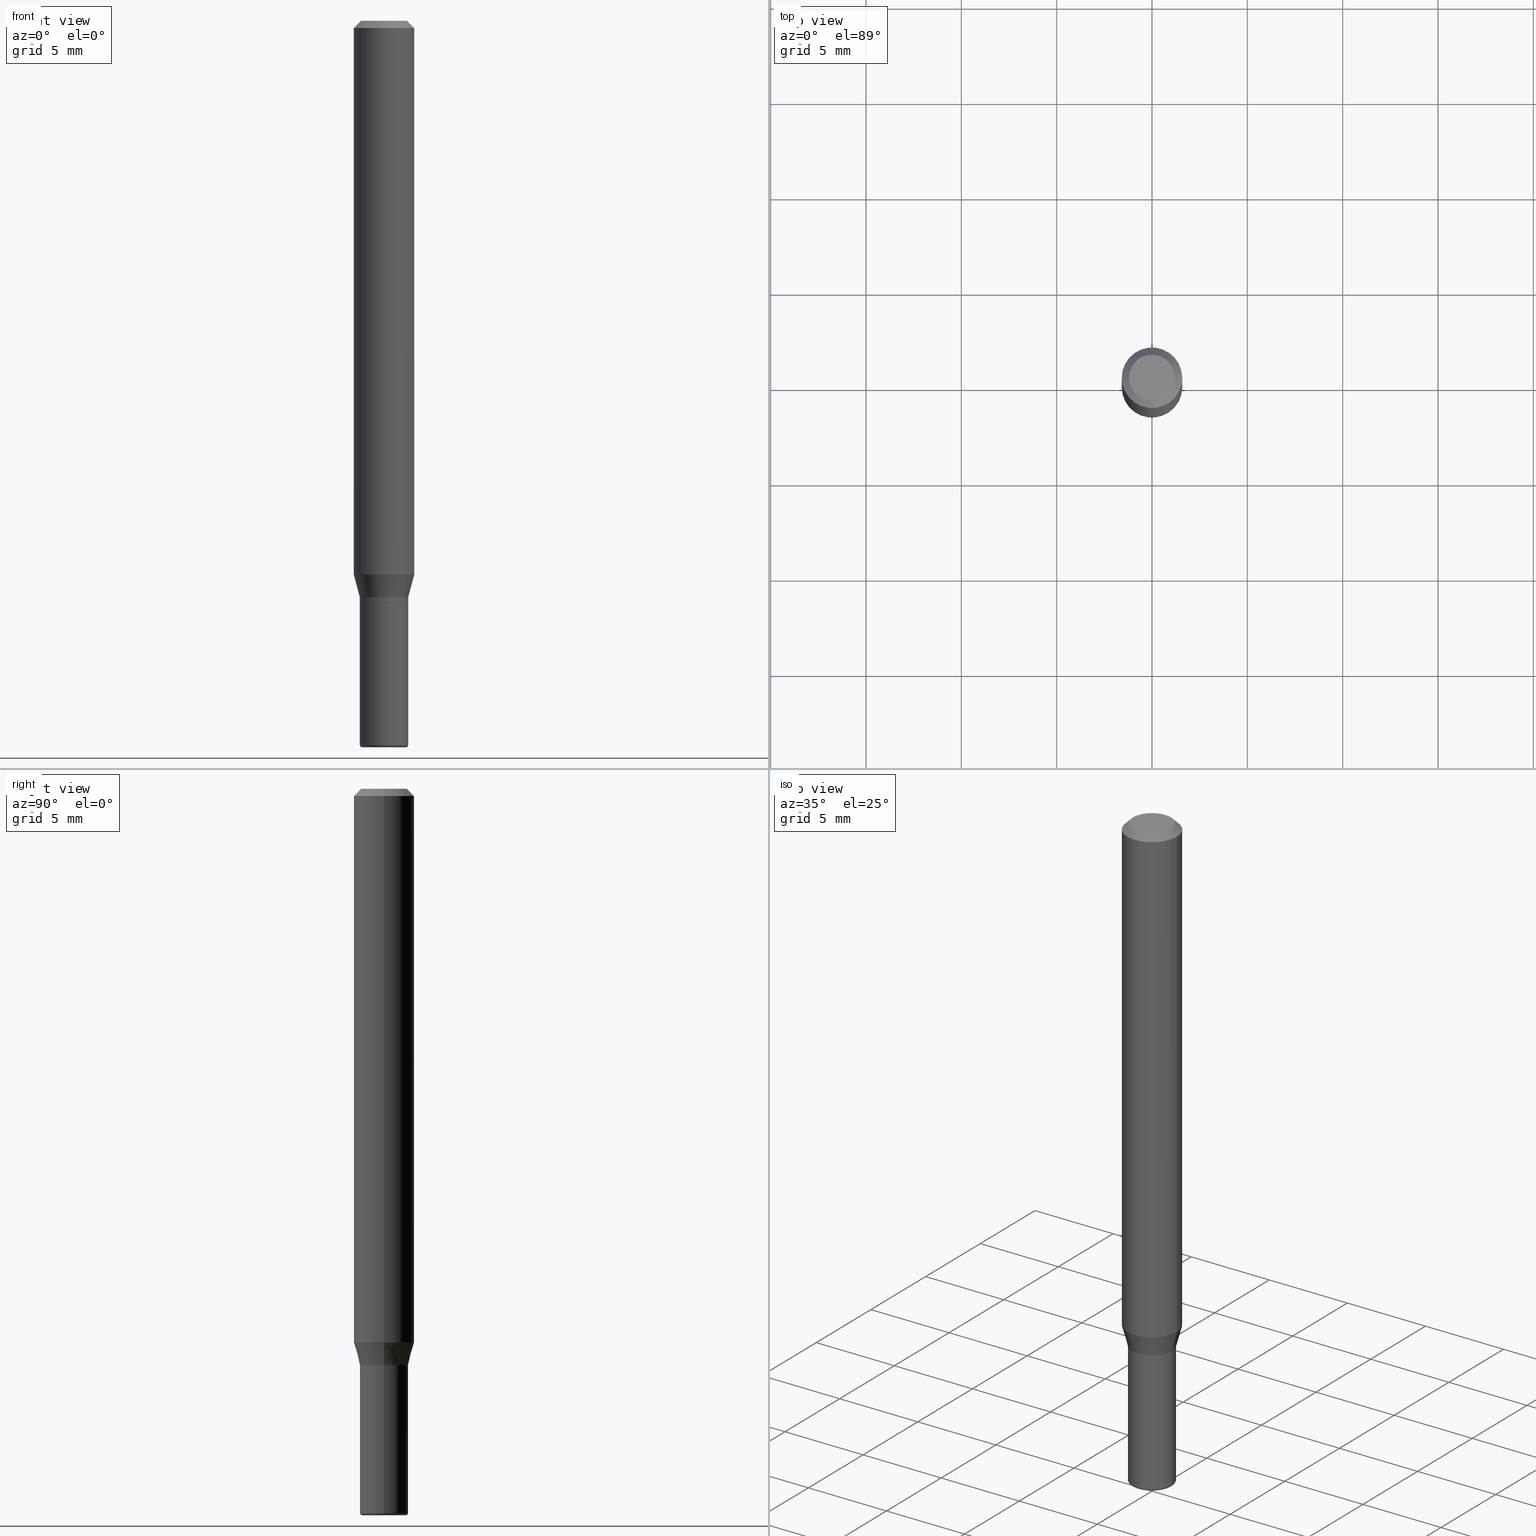
[diagram: canonical four-view strip — front | top / right | iso, engineering-drawing reading convention]
A machine part, canonical four-view strip (front | top / right | iso — engineering-drawing reading convention). The complete STEP part file that produces these views, byte-faithful:
ISO-10303-21;
HEADER;
FILE_DESCRIPTION (( 'STEP AP203' ),
    '1' );
FILE_NAME ('08592.STEP',
    '2024-02-29T19:54:31',
    ( '' ),
    ( '' ),
    'SwSTEP 2.0',
    'SolidWorks 2023',
    '' );
FILE_SCHEMA (( 'CONFIG_CONTROL_DESIGN' ));
ENDSEC;

DATA;
#1 = VECTOR ( 'NONE', #136, 39.37007874015748143 ) ;
#2 = VECTOR ( 'NONE', #469, 39.37007874015748143 ) ;
#3 = DIRECTION ( 'NONE',  ( -2.445468806185136597E-29, 3.491481338843145583E-15, 1.000000000000000000 ) ) ;
#4 = DIRECTION ( 'NONE',  ( -2.445468806185136597E-29, 3.491481338843145583E-15, 1.000000000000000000 ) ) ;
#5 = FACE_OUTER_BOUND ( 'NONE', #494, .T. ) ;
#6 = DIRECTION ( 'NONE',  ( -2.445468806185136597E-29, 3.491481338843145583E-15, 1.000000000000000000 ) ) ;
#7 = CARTESIAN_POINT ( 'NONE',  ( 3.655975865246779122E-29, -5.219764601570503141E-15, -1.495000000000000107 ) ) ;
#8 = AXIS2_PLACEMENT_3D ( 'NONE', #311, #476, #230 ) ;
#9 = APPROVAL_PERSON_ORGANIZATION ( #478, #359, #139 ) ;
#10 = ORIENTED_EDGE ( 'NONE', *, *, #234, .T. ) ;
#11 = CC_DESIGN_PERSON_AND_ORGANIZATION_ASSIGNMENT ( #388, #427, ( #77 ) ) ;
#12 = DIRECTION ( 'NONE',  ( 1.000000000000000000, -6.982962677686267499E-15, 4.883557194083112901E-29 ) ) ;
#13 = ORIENTED_EDGE ( 'NONE', *, *, #442, .T. ) ;
#14 = LINE ( 'NONE', #18, #383 ) ;
#15 = DIRECTION ( 'NONE',  ( -0.2588190451025206840, 5.211531920934545520E-15, 0.9659258262890682012 ) ) ;
#16 = EDGE_CURVE ( 'NONE', #338, #151, #318, .T. ) ;
#17 = ADVANCED_FACE ( 'NONE', ( #316 ), #474, .T. ) ;
#18 = CARTESIAN_POINT ( 'NONE',  ( -0.04949999999999996070, -3.838058952410526294E-15, -1.200000000000000178 ) ) ;
#19 = AXIS2_PLACEMENT_3D ( 'NONE', #380, #343, #504 ) ;
#20 = DIRECTION ( 'NONE',  ( -2.445468806185136597E-29, 3.491481338843145583E-15, 1.000000000000000000 ) ) ;
#21 = ORIENTED_EDGE ( 'NONE', *, *, #331, .F. ) ;
#22 = CARTESIAN_POINT ( 'NONE',  ( 0.000000000000000000, 0.000000000000000000, 0.000000000000000000 ) ) ;
#23 = CARTESIAN_POINT ( 'NONE',  ( 0.000000000000000000, 0.000000000000000000, 0.000000000000000000 ) ) ;
#24 = ORIENTED_EDGE ( 'NONE', *, *, #140, .F. ) ;
#25 = PLANE ( 'NONE',  #241 ) ;
#26 = MANIFOLD_SOLID_BREP ( 'Body-Move/Copy2[2]', #439 ) ;
#27 = CARTESIAN_POINT ( 'NONE',  ( 3.655975865246779683E-29, -5.219764601570503930E-15, -1.495000000000000329 ) ) ;
#28 = EDGE_CURVE ( 'NONE', #367, #415, #236, .T. ) ;
#29 = DIRECTION ( 'NONE',  ( 1.000000000000000000, 0.000000000000000000, 0.000000000000000000 ) ) ;
#30 = ORIENTED_EDGE ( 'NONE', *, *, #497, .F. ) ;
#31 = AXIS2_PLACEMENT_3D ( 'NONE', #191, #116, #80 ) ;
#32 = CALENDAR_DATE ( 2024, 29, 2 ) ;
#33 = DIRECTION ( 'NONE',  ( 0.000000000000000000, 0.000000000000000000, 1.000000000000000000 ) ) ;
#34 = DIRECTION ( 'NONE',  ( 7.105427357601001859E-15, 1.000000000000000000, -3.491481338843145583E-15 ) ) ;
#35 = CARTESIAN_POINT ( 'NONE',  ( 0.000000000000000000, 0.000000000000000000, 0.000000000000000000 ) ) ;
#36 = CC_DESIGN_DATE_AND_TIME_ASSIGNMENT ( #433, #319, ( #143 ) ) ;
#37 = AXIS2_PLACEMENT_3D ( 'NONE', #470, #389, #183 ) ;
#38 = CIRCLE ( 'NONE', #355, 0.04999999999999996114 ) ;
#39 = CALENDAR_DATE ( 2024, 29, 2 ) ;
#40 = SHAPE_DEFINITION_REPRESENTATION ( #402, #239 ) ;
#41 = EDGE_CURVE ( 'NONE', #335, #55, #71, .T. ) ;
#42 = CC_DESIGN_PERSON_AND_ORGANIZATION_ASSIGNMENT ( #304, #238, ( #448 ) ) ;
#43 = CARTESIAN_POINT ( 'NONE',  ( 3.655975865246779122E-29, -5.219764601570503141E-15, -1.495000000000000107 ) ) ;
#44 = VECTOR ( 'NONE', #283, 39.37007874015748143 ) ;
#45 = ORGANIZATION ( 'UNSPECIFIED', 'UNSPECIFIED', '' ) ;
#46 = DIRECTION ( 'NONE',  ( 1.000000000000000000, -6.982962677686261977E-15, 0.000000000000000000 ) ) ;
#47 = PLANE ( 'NONE',  #114 ) ;
#48 = FACE_OUTER_BOUND ( 'NONE', #240, .T. ) ;
#49 = DESIGN_CONTEXT ( 'detailed design', #65, 'design' ) ;
#50 = DIRECTION ( 'NONE',  ( -2.445468806185136597E-29, 3.491481338843145583E-15, 1.000000000000000000 ) ) ;
#51 = ORIENTED_EDGE ( 'NONE', *, *, #258, .T. ) ;
#52 = DIRECTION ( 'NONE',  ( -2.445468806185136597E-29, 3.491481338843145583E-15, 1.000000000000000000 ) ) ;
#53 = AXIS2_PLACEMENT_3D ( 'NONE', #27, #334, #181 ) ;
#54 = DIRECTION ( 'NONE',  ( 2.445468806185136597E-29, -3.491481338843145583E-15, -1.000000000000000000 ) ) ;
#55 = VERTEX_POINT ( 'NONE', #321 ) ;
#56 = DIRECTION ( 'NONE',  ( -2.445468806185136597E-29, 3.491481338843145583E-15, 1.000000000000000000 ) ) ;
#57 = ORIENTED_EDGE ( 'NONE', *, *, #442, .F. ) ;
#58 = CARTESIAN_POINT ( 'NONE',  ( 0.04999999999999996114, -3.491481338843130397E-16, 2.438088387897966145E-30 ) ) ;
#59 = ORIENTED_EDGE ( 'NONE', *, *, #198, .T. ) ;
#60 = AXIS2_PLACEMENT_3D ( 'NONE', #493, #211, #293 ) ;
#61 = LENGTH_MEASURE_WITH_UNIT ( LENGTH_MEASURE( 0.02539999999999999897 ), #268 );
#62 = ORIENTED_EDGE ( 'NONE', *, *, #110, .T. ) ;
#63 = ORIENTED_EDGE ( 'NONE', *, *, #482, .F. ) ;
#64 = DIRECTION ( 'NONE',  ( 1.000000000000000000, -6.982962677686261977E-15, 0.000000000000000000 ) ) ;
#65 = APPLICATION_CONTEXT ( 'configuration controlled 3d designs of mechanical parts and assemblies' ) ;
#66 = CARTESIAN_POINT ( 'NONE',  ( 2.796025206447715018E-29, -3.991982971345326635E-15, -1.143349364905388743 ) ) ;
#67 = APPROVAL_STATUS ( 'not_yet_approved' ) ;
#68 = EDGE_LOOP ( 'NONE', ( #51, #62, #218, #189 ) ) ;
#69 = CIRCLE ( 'NONE', #53, 0.04999999999999991257 ) ;
#70 = APPROVAL_DATE_TIME ( #300, #359 ) ;
#71 = CIRCLE ( 'NONE', #362, 0.04949999999999996070 ) ;
#72 = EDGE_CURVE ( 'NONE', #357, #255, #430, .T. ) ;
#73 = APPROVAL ( #67, 'UNSPECIFIED' ) ;
#74 = CARTESIAN_POINT ( 'NONE',  ( -0.06250000000000000000, -3.547893761495264019E-15, -1.143349364905388743 ) ) ;
#75 = CARTESIAN_POINT ( 'NONE',  ( 2.934562567422164701E-29, -4.189777606611775804E-15, -1.200000000000000178 ) ) ;
#76 = DIRECTION ( 'NONE',  ( 1.000000000000000000, -6.982962677686266711E-15, 4.852736867747365086E-29 ) ) ;
#77 = PRODUCT ( '08592', '08592', '', ( #266 ) ) ;
#78 = DIRECTION ( 'NONE',  ( -2.445468806185136597E-29, 3.491481338843145583E-15, 1.000000000000000000 ) ) ;
#79 = AXIS2_PLACEMENT_3D ( 'NONE', #365, #56, #375 ) ;
#80 = DIRECTION ( 'NONE',  ( 1.000000000000000000, -6.982962677686266711E-15, 0.000000000000000000 ) ) ;
#81 = EDGE_CURVE ( 'NONE', #297, #423, #324, .T. ) ;
#82 = CARTESIAN_POINT ( 'NONE',  ( 2.934562567422164701E-29, -4.189777606611775804E-15, -1.200000000000000178 ) ) ;
#83 = ADVANCED_FACE ( 'NONE', ( #440 ), #47, .F. ) ;
#84 = CIRCLE ( 'NONE', #377, 0.004999999999999903827 ) ;
#85 = LINE ( 'NONE', #129, #44 ) ;
#86 = ADVANCED_FACE ( 'NONE', ( #410 ), #284, .T. ) ;
#87 = APPROVAL ( #200, 'UNSPECIFIED' ) ;
#88 = DIRECTION ( 'NONE',  ( -1.000000000000000000, 6.982962677686265922E-15, -4.876176775795935793E-29 ) ) ;
#89 = AXIS2_PLACEMENT_3D ( 'NONE', #43, #3, #246 ) ;
#90 = ADVANCED_FACE ( 'NONE', ( #252 ), #384, .T. ) ;
#91 = CC_DESIGN_PERSON_AND_ORGANIZATION_ASSIGNMENT ( #113, #390, ( #397 ) ) ;
#92 = CYLINDRICAL_SURFACE ( 'NONE', #289, 0.04999999999999995420 ) ;
#93 = LINE ( 'NONE', #178, #411 ) ;
#94 = ORIENTED_EDGE ( 'NONE', *, *, #197, .T. ) ;
#95 = LINE ( 'NONE', #373, #201 ) ;
#96 = ORIENTED_EDGE ( 'NONE', *, *, #140, .T. ) ;
#97 = EDGE_LOOP ( 'NONE', ( #13, #465, #237, #215 ) ) ;
#98 = CARTESIAN_POINT ( 'NONE',  ( -0.04999999999999994726, -3.673742593419278882E-15, -1.189999999999999947 ) ) ;
#99 = ORIENTED_EDGE ( 'NONE', *, *, #81, .T. ) ;
#100 = DIRECTION ( 'NONE',  ( 1.000000000000000000, -6.982962677686260400E-15, 0.000000000000000000 ) ) ;
#101 = VECTOR ( 'NONE', #15, 39.37007874015748854 ) ;
#102 = DIRECTION ( 'NONE',  ( -2.445468806185136877E-29, 3.491481338843145188E-15, 1.000000000000000000 ) ) ;
#103 = CARTESIAN_POINT ( 'NONE',  ( 2.933339833019071339E-29, -4.188031865942352722E-15, -1.199500000000000011 ) ) ;
#104 = DIRECTION ( 'NONE',  ( -2.445468806185136877E-29, 3.491481338843145188E-15, 1.000000000000000000 ) ) ;
#105 = DIRECTION ( 'NONE',  ( 1.000000000000000000, -6.982962677686273021E-15, 0.000000000000000000 ) ) ;
#106 = CARTESIAN_POINT ( 'NONE',  ( 0.000000000000000000, 0.000000000000000000, 0.000000000000000000 ) ) ;
#107 = ORIENTED_EDGE ( 'NONE', *, *, #263, .T. ) ;
#108 = CALENDAR_DATE ( 2024, 29, 2 ) ;
#109 = CIRCLE ( 'NONE', #19, 0.05000000000000000278 ) ;
#110 = EDGE_CURVE ( 'NONE', #414, #151, #209, .T. ) ;
#111 = CC_DESIGN_APPROVAL ( #359, ( #448 ) ) ;
#112 = ORIENTED_EDGE ( 'NONE', *, *, #41, .T. ) ;
#113 = PERSON_AND_ORGANIZATION ( #376, #45 ) ;
#114 = AXIS2_PLACEMENT_3D ( 'NONE', #199, #453, #124 ) ;
#115 = DIRECTION ( 'NONE',  ( -2.445468806185136597E-29, 3.491481338843145583E-15, 1.000000000000000000 ) ) ;
#116 = DIRECTION ( 'NONE',  ( -2.445468806185136597E-29, 3.491481338843145583E-15, 1.000000000000000000 ) ) ;
#117 = CARTESIAN_POINT ( 'NONE',  ( 3.668203209277632395E-31, -5.237222008264614861E-17, -0.01499999999999970281 ) ) ;
#118 = DIRECTION ( 'NONE',  ( 1.000000000000000000, -6.982962677686265922E-15, 4.876176775795936353E-29 ) ) ;
#119 = EDGE_CURVE ( 'NONE', #137, #151, #95, .T. ) ;
#120 = CARTESIAN_POINT ( 'NONE',  ( -6.680649051745406845E-45, 9.538196290434862081E-31, 2.731847993664263218E-16 ) ) ;
#121 = AXIS2_PLACEMENT_3D ( 'NONE', #120, #115, #76 ) ;
#122 = CLOSED_SHELL ( 'NONE', ( #165, #17, #294, #421, #445, #352 ) ) ;
#123 = CARTESIAN_POINT ( 'NONE',  ( 3.668203209277704335E-29, -5.237222008264717388E-15, -1.499999999999999778 ) ) ;
#124 = DIRECTION ( 'NONE',  ( -1.000000000000000000, 6.982962677686265922E-15, -4.876176775795935793E-29 ) ) ;
#125 = CARTESIAN_POINT ( 'NONE',  ( 0.06250000000000000000, -4.888073874380378612E-16, -0.01499999999999970281 ) ) ;
#126 = APPLICATION_CONTEXT ( 'configuration controlled 3d designs of mechanical parts and assemblies' ) ;
#127 = CARTESIAN_POINT ( 'NONE',  ( 0.000000000000000000, 0.000000000000000000, 0.000000000000000000 ) ) ;
#128 = EDGE_CURVE ( 'NONE', #335, #372, #14, .T. ) ;
#129 = CARTESIAN_POINT ( 'NONE',  ( 0.06250000000000000000, -4.811533449433669144E-16, -0.01499999999999970281 ) ) ;
#130 = ADVANCED_FACE ( 'NONE', ( #461 ), #92, .T. ) ;
#131 = ORIENTED_EDGE ( 'NONE', *, *, #72, .T. ) ;
#132 = ORIENTED_EDGE ( 'NONE', *, *, #128, .F. ) ;
#133 = ORIENTED_EDGE ( 'NONE', *, *, #110, .F. ) ;
#134 = CIRCLE ( 'NONE', #121, 0.04750000000000000749 ) ;
#135 = ORIENTED_EDGE ( 'NONE', *, *, #482, .T. ) ;
#136 = DIRECTION ( 'NONE',  ( -2.445468806185136877E-29, 3.491481338843145188E-15, 1.000000000000000000 ) ) ;
#137 = VERTEX_POINT ( 'NONE', #386 ) ;
#138 = CARTESIAN_POINT ( 'NONE',  ( 0.04500000000000000527, -5.551455328760599863E-15, -1.499999999999999778 ) ) ;
#139 = APPROVAL_ROLE ( '' ) ;
#140 = EDGE_CURVE ( 'NONE', #305, #351, #69, .T. ) ;
#141 = CIRCLE ( 'NONE', #37, 0.04750000000000000749 ) ;
#142 = CARTESIAN_POINT ( 'NONE',  ( -0.04999999999999995420, 3.552713678800497675E-16, -2.459467545127450859E-30 ) ) ;
#143 = SECURITY_CLASSIFICATION ( '', '', #279 ) ;
#144 = EDGE_LOOP ( 'NONE', ( #514, #131, #135, #24 ) ) ;
#145 = DIRECTION ( 'NONE',  ( 1.000000000000000000, -6.982962677686266711E-15, 0.000000000000000000 ) ) ;
#146 = ORIENTED_EDGE ( 'NONE', *, *, #278, .F. ) ;
#147 = CIRCLE ( 'NONE', #458, 0.04500000000000000527 ) ;
#148 = DIRECTION ( 'NONE',  ( -2.445468806185136597E-29, 3.491481338843145583E-15, 1.000000000000000000 ) ) ;
#149 =( GEOMETRIC_REPRESENTATION_CONTEXT ( 3 ) GLOBAL_UNCERTAINTY_ASSIGNED_CONTEXT ( ( #170 ) ) GLOBAL_UNIT_ASSIGNED_CONTEXT ( ( #306, #347, #341 ) ) REPRESENTATION_CONTEXT ( 'NONE', 'WORKASPACE' ) );
#150 = CARTESIAN_POINT ( 'NONE',  ( 2.934562567422164701E-29, -4.189777606611775804E-15, -1.200000000000000178 ) ) ;
#151 = VERTEX_POINT ( 'NONE', #250 ) ;
#152 = DIRECTION ( 'NONE',  ( -2.438088387897960049E-29, 3.491481338843145188E-15, 1.000000000000000000 ) ) ;
#153 = CONICAL_SURFACE ( 'NONE', #8, 0.04949999999999996070, 0.7853981633972775267 ) ;
#154 = COORDINATED_UNIVERSAL_TIME_OFFSET ( 5, 0, .BEHIND. ) ;
#155 = EDGE_CURVE ( 'NONE', #414, #222, #391, .T. ) ;
#156 = DIRECTION ( 'NONE',  ( -2.445468806185136597E-29, 3.491481338843145583E-15, 1.000000000000000000 ) ) ;
#157 = CC_DESIGN_DATE_AND_TIME_ASSIGNMENT ( #510, #307, ( #397 ) ) ;
#158 = DIRECTION ( 'NONE',  ( -2.438088387897960049E-29, 3.491481338843145188E-15, 1.000000000000000000 ) ) ;
#159 = PLANE ( 'NONE',  #184 ) ;
#160 = DIRECTION ( 'NONE',  ( -2.445468806185136877E-29, 3.491481338843145188E-15, 1.000000000000000000 ) ) ;
#161 = CARTESIAN_POINT ( 'NONE',  ( 2.910107879360312034E-29, -4.154862793223342577E-15, -1.189999999999999947 ) ) ;
#162 = AXIS2_PLACEMENT_3D ( 'NONE', #500, #301, #64 ) ;
#163 = APPROVAL_PERSON_ORGANIZATION ( #179, #73, #499 ) ;
#164 = DIRECTION ( 'NONE',  ( -1.000000000000000000, 6.982962677686266711E-15, 0.000000000000000000 ) ) ;
#165 = ADVANCED_FACE ( 'NONE', ( #454 ), #471, .T. ) ;
#166 = ADVANCED_FACE ( 'NONE', ( #285 ), #207, .T. ) ;
#167 = CARTESIAN_POINT ( 'NONE',  ( -0.04999999999999991257, -4.349499736211090247E-15, -1.495000000000000329 ) ) ;
#168 = ORIENTED_EDGE ( 'NONE', *, *, #253, .F. ) ;
#169 = VERTEX_POINT ( 'NONE', #98 ) ;
#170 = UNCERTAINTY_MEASURE_WITH_UNIT (LENGTH_MEASURE( 1.000000000000000082E-05 ), #306, 'distance_accuracy_value', 'NONE');
#171 = EDGE_LOOP ( 'NONE', ( #21, #225, #426, #387 ) ) ;
#172 = CIRCLE ( 'NONE', #282, 0.004999999999999903827 ) ;
#173 = ORIENTED_EDGE ( 'NONE', *, *, #280, .F. ) ;
#174 = ORIENTED_EDGE ( 'NONE', *, *, #128, .T. ) ;
#175 = VECTOR ( 'NONE', #381, 39.37007874015748143 ) ;
#176 = EDGE_LOOP ( 'NONE', ( #506, #174, #496, #168 ) ) ;
#177 = EDGE_LOOP ( 'NONE', ( #481, #227, #466, #231 ) ) ;
#178 = CARTESIAN_POINT ( 'NONE',  ( 0.04949999999999996070, -4.535434259157245343E-15, -1.200000000000000178 ) ) ;
#179 = PERSON_AND_ORGANIZATION ( #376, #45 ) ;
#180 = ADVANCED_FACE ( 'NONE', ( #190 ), #153, .T. ) ;
#181 = DIRECTION ( 'NONE',  ( 1.000000000000000000, -6.982962677686266711E-15, 0.000000000000000000 ) ) ;
#182 = APPLICATION_PROTOCOL_DEFINITION ( 'international standard', 'config_control_design', 1994, #65 ) ;
#183 = DIRECTION ( 'NONE',  ( 1.000000000000000000, -6.982962677686266711E-15, 4.852736867747365086E-29 ) ) ;
#184 = AXIS2_PLACEMENT_3D ( 'NONE', #208, #158, #407 ) ;
#185 = CC_DESIGN_APPROVAL ( #87, ( #143 ) ) ;
#186 = DIRECTION ( 'NONE',  ( 1.000000000000000000, -6.982962677686265922E-15, 4.876176775795936353E-29 ) ) ;
#187 = CARTESIAN_POINT ( 'NONE',  ( 0.06250000000000000000, -4.364351673553916694E-16, 3.047610484872459871E-30 ) ) ;
#188 = ADVANCED_FACE ( 'NONE', ( #508 ), #477, .T. ) ;
#189 = ORIENTED_EDGE ( 'NONE', *, *, #483, .F. ) ;
#190 = FACE_OUTER_BOUND ( 'NONE', #176, .T. ) ;
#191 = CARTESIAN_POINT ( 'NONE',  ( 3.655975865246779683E-29, -5.219764601570503930E-15, -1.495000000000000329 ) ) ;
#192 = ORIENTED_EDGE ( 'NONE', *, *, #408, .T. ) ;
#193 = DIRECTION ( 'NONE',  ( 1.000000000000000000, -6.982962677686261977E-15, 0.000000000000000000 ) ) ;
#194 = AXIS2_PLACEMENT_3D ( 'NONE', #150, #313, #399 ) ;
#195 = CC_DESIGN_APPROVAL ( #73, ( #397 ) ) ;
#196 = LINE ( 'NONE', #257, #101 ) ;
#197 = EDGE_CURVE ( 'NONE', #169, #423, #495, .T. ) ;
#198 = EDGE_CURVE ( 'NONE', #137, #223, #141, .T. ) ;
#199 = CARTESIAN_POINT ( 'NONE',  ( 3.316907271900976589E-16, 0.04750000000000000749, -2.925296391183627249E-17 ) ) ;
#200 = APPROVAL_STATUS ( 'not_yet_approved' ) ;
#201 = VECTOR ( 'NONE', #260, 39.37007874015748143 ) ;
#202 = VECTOR ( 'NONE', #104, 39.37007874015748143 ) ;
#203 = ADVANCED_FACE ( 'NONE', ( #345 ), #247, .T. ) ;
#204 = AXIS2_PLACEMENT_3D ( 'NONE', #364, #50, #488 ) ;
#205 = CARTESIAN_POINT ( 'NONE',  ( 0.04999999999999996114, -4.537179999826666847E-15, -1.199500000000000011 ) ) ;
#206 = DIRECTION ( 'NONE',  ( 1.000000000000000000, -6.982962677686274599E-15, 0.000000000000000000 ) ) ;
#207 = CYLINDRICAL_SURFACE ( 'NONE', #60, 0.06250000000000000000 ) ;
#208 = CARTESIAN_POINT ( 'NONE',  ( 2.934562567422164701E-29, -4.189777606611775804E-15, -1.200000000000000178 ) ) ;
#209 = LINE ( 'NONE', #456, #175 ) ;
#210 = ORIENTED_EDGE ( 'NONE', *, *, #263, .F. ) ;
#211 = DIRECTION ( 'NONE',  ( -2.445468806185136597E-29, 3.491481338843145583E-15, 1.000000000000000000 ) ) ;
#212 = EDGE_CURVE ( 'NONE', #223, #137, #134, .T. ) ;
#213 = AXIS2_PLACEMENT_3D ( 'NONE', #22, #472, #337 ) ;
#214 = CC_DESIGN_SECURITY_CLASSIFICATION ( #143, ( #448 ) ) ;
#215 = ORIENTED_EDGE ( 'NONE', *, *, #350, .F. ) ;
#216 = ORIENTED_EDGE ( 'NONE', *, *, #358, .F. ) ;
#217 = DIRECTION ( 'NONE',  ( 1.000000000000000000, -6.982962677686265922E-15, 4.876176775795935793E-29 ) ) ;
#218 = ORIENTED_EDGE ( 'NONE', *, *, #16, .F. ) ;
#219 = EDGE_CURVE ( 'NONE', #169, #414, #196, .T. ) ;
#220 = CIRCLE ( 'NONE', #31, 0.04999999999999991257 ) ;
#221 = APPROVAL_PERSON_ORGANIZATION ( #516, #87, #242 ) ;
#222 = VERTEX_POINT ( 'NONE', #265 ) ;
#223 = VERTEX_POINT ( 'NONE', #462 ) ;
#224 = DIRECTION ( 'NONE',  ( -6.982962677686266711E-15, -1.000000000000000000, 3.491481338843145583E-15 ) ) ;
#225 = ORIENTED_EDGE ( 'NONE', *, *, #198, .F. ) ;
#226 = DIRECTION ( 'NONE',  ( -0.7071067811864267805, 7.493145998869918709E-15, 0.7071067811866682540 ) ) ;
#227 = ORIENTED_EDGE ( 'NONE', *, *, #331, .T. ) ;
#228 = LINE ( 'NONE', #417, #1 ) ;
#229 = CARTESIAN_POINT ( 'NONE',  ( 3.668203209277632395E-31, -5.237222008264614861E-17, -0.01499999999999970281 ) ) ;
#230 = DIRECTION ( 'NONE',  ( 1.000000000000000000, -6.982962677686269866E-15, 0.000000000000000000 ) ) ;
#231 = ORIENTED_EDGE ( 'NONE', *, *, #119, .F. ) ;
#232 = LINE ( 'NONE', #58, #353 ) ;
#233 = COORDINATED_UNIVERSAL_TIME_OFFSET ( 5, 0, .BEHIND. ) ;
#234 = EDGE_CURVE ( 'NONE', #305, #415, #228, .T. ) ;
#235 = DATE_AND_TIME ( #108, #378 ) ;
#236 = CIRCLE ( 'NONE', #270, 0.05000000000000000278 ) ;
#237 = ORIENTED_EDGE ( 'NONE', *, *, #258, .F. ) ;
#238 = PERSON_AND_ORGANIZATION_ROLE ( 'creator' ) ;
#239 = ADVANCED_BREP_SHAPE_REPRESENTATION ( '08592', ( #370, #26, #413 ), #149 ) ;
#240 = EDGE_LOOP ( 'NONE', ( #354, #296 ) ) ;
#241 = AXIS2_PLACEMENT_3D ( 'NONE', #264, #424, #88 ) ;
#242 = APPROVAL_ROLE ( '' ) ;
#243 = PERSON_AND_ORGANIZATION ( #376, #45 ) ;
#244 = CARTESIAN_POINT ( 'NONE',  ( 0.04999999999999995420, -3.491481338843129904E-16, 2.438088387897965794E-30 ) ) ;
#245 = APPROVAL_DATE_TIME ( #438, #87 ) ;
#246 = DIRECTION ( 'NONE',  ( 1.000000000000000000, -6.982962677686267499E-15, 4.883557194083112901E-29 ) ) ;
#247 = CONICAL_SURFACE ( 'NONE', #368, 0.04949999999999996070, 0.7853981633972775267 ) ;
#248 = LOCAL_TIME ( 14, 54, 31.00000000000000000, #154 ) ;
#249 = CARTESIAN_POINT ( 'NONE',  ( 2.934562567422164701E-29, -4.189777606611775804E-15, -1.200000000000000178 ) ) ;
#250 = CARTESIAN_POINT ( 'NONE',  ( -0.06250000000000000000, -1.578088385863923649E-15, -0.01499999999999970281 ) ) ;
#251 = DIRECTION ( 'NONE',  ( 0.2588190451025206840, 1.565188264969626504E-15, 0.9659258262890682012 ) ) ;
#252 = FACE_OUTER_BOUND ( 'NONE', #177, .T. ) ;
#253 = EDGE_CURVE ( 'NONE', #55, #297, #93, .T. ) ;
#254 = AXIS2_PLACEMENT_3D ( 'NONE', #277, #152, #436 ) ;
#255 = VERTEX_POINT ( 'NONE', #138 ) ;
#256 = DIRECTION ( 'NONE',  ( -2.445468806185136597E-29, 3.491481338843145583E-15, 1.000000000000000000 ) ) ;
#257 = CARTESIAN_POINT ( 'NONE',  ( -0.04999999999999994726, -3.799591425343292957E-15, -1.189999999999999947 ) ) ;
#258 = EDGE_CURVE ( 'NONE', #222, #414, #428, .T. ) ;
#259 = EDGE_LOOP ( 'NONE', ( #457, #10, #374, #210 ) ) ;
#260 = DIRECTION ( 'NONE',  ( -0.7071067811865479058, 2.468850131082261005E-15, -0.7071067811865471286 ) ) ;
#261 = AXIS2_PLACEMENT_3D ( 'NONE', #356, #78, #193 ) ;
#262 = DIRECTION ( 'NONE',  ( -2.445468806185136597E-29, 3.491481338843145583E-15, 1.000000000000000000 ) ) ;
#263 = EDGE_CURVE ( 'NONE', #351, #367, #232, .T. ) ;
#264 = CARTESIAN_POINT ( 'NONE',  ( 3.491481338843426713E-16, 0.04999999999999581168, -1.200000000000000400 ) ) ;
#265 = CARTESIAN_POINT ( 'NONE',  ( 0.06250000000000000000, -4.428418138700718304E-15, -1.143349364905388743 ) ) ;
#266 = MECHANICAL_CONTEXT ( 'NONE', #126, 'mechanical' ) ;
#267 = ORIENTED_EDGE ( 'NONE', *, *, #452, .T. ) ;
#268 =( LENGTH_UNIT ( ) NAMED_UNIT ( * ) SI_UNIT ( $, .METRE. ) );
#269 = CONICAL_SURFACE ( 'NONE', #486, 0.04999999999999994726, 0.2617993877991494078 ) ;
#270 = AXIS2_PLACEMENT_3D ( 'NONE', #75, #156, #206 ) ;
#271 = EDGE_LOOP ( 'NONE', ( #468, #96, #107, #173 ) ) ;
#272 = CALENDAR_DATE ( 2024, 29, 2 ) ;
#273 = DIRECTION ( 'NONE',  ( -2.445468806185136597E-29, 3.491481338843145583E-15, 1.000000000000000000 ) ) ;
#274 = CARTESIAN_POINT ( 'NONE',  ( -0.04500000000000000527, -4.900020370478457773E-15, -1.495000000000000107 ) ) ;
#275 = DIRECTION ( 'NONE',  ( 1.000000000000000000, -6.982962677686266711E-15, 0.000000000000000000 ) ) ;
#276 = FACE_OUTER_BOUND ( 'NONE', #271, .T. ) ;
#277 = CARTESIAN_POINT ( 'NONE',  ( 3.582686580359765478E-29, -5.359686688179452536E-15, -1.499999999999999778 ) ) ;
#278 = EDGE_CURVE ( 'NONE', #372, #169, #501, .T. ) ;
#279 = SECURITY_CLASSIFICATION_LEVEL ( 'unclassified' ) ;
#280 = EDGE_CURVE ( 'NONE', #415, #367, #109, .T. ) ;
#281 = CARTESIAN_POINT ( 'NONE',  ( 0.04999999999999994726, -4.504010927107655912E-15, -1.189999999999999947 ) ) ;
#282 = AXIS2_PLACEMENT_3D ( 'NONE', #491, #224, #105 ) ;
#283 = DIRECTION ( 'NONE',  ( 0.7071067811865479058, -7.319954787623257623E-15, -0.7071067811865471286 ) ) ;
#284 = CYLINDRICAL_SURFACE ( 'NONE', #479, 0.04999999999999995420 ) ;
#285 = FACE_OUTER_BOUND ( 'NONE', #68, .T. ) ;
#286 = ADVANCED_FACE ( 'NONE', ( #463 ), #302, .T. ) ;
#287 = ORIENTED_EDGE ( 'NONE', *, *, #278, .T. ) ;
#288 = ORIENTED_EDGE ( 'NONE', *, *, #280, .T. ) ;
#289 = AXIS2_PLACEMENT_3D ( 'NONE', #23, #256, #217 ) ;
#290 = EDGE_LOOP ( 'NONE', ( #59, #498 ) ) ;
#291 = FACE_OUTER_BOUND ( 'NONE', #400, .T. ) ;
#292 = EDGE_CURVE ( 'NONE', #372, #297, #503, .T. ) ;
#293 = DIRECTION ( 'NONE',  ( 1.000000000000000000, -6.982962677686266711E-15, 4.876176775795935793E-29 ) ) ;
#294 = ADVANCED_FACE ( 'NONE', ( #385 ), #25, .F. ) ;
#295 = AXIS2_PLACEMENT_3D ( 'NONE', #106, #20, #186 ) ;
#296 = ORIENTED_EDGE ( 'NONE', *, *, #72, .F. ) ;
#297 = VERTEX_POINT ( 'NONE', #205 ) ;
#298 = ORIENTED_EDGE ( 'NONE', *, *, #350, .T. ) ;
#299 = DIRECTION ( 'NONE',  ( -2.445468806185136597E-29, 3.491481338843145583E-15, 1.000000000000000000 ) ) ;
#300 = DATE_AND_TIME ( #272, #303 ) ;
#301 = DIRECTION ( 'NONE',  ( -2.445468806185136597E-29, 3.491481338843145583E-15, 1.000000000000000000 ) ) ;
#302 = CYLINDRICAL_SURFACE ( 'NONE', #213, 0.06250000000000000000 ) ;
#303 = LOCAL_TIME ( 14, 54, 31.00000000000000000, #475 ) ;
#304 = PERSON_AND_ORGANIZATION ( #376, #45 ) ;
#305 = VERTEX_POINT ( 'NONE', #167 ) ;
#306 =( CONVERSION_BASED_UNIT ( 'INCH', #61 ) LENGTH_UNIT ( ) NAMED_UNIT ( #330 ) );
#307 = DATE_TIME_ROLE ( 'creation_date' ) ;
#308 = CONICAL_SURFACE ( 'NONE', #511, 0.06250000000000000000, 0.7853981633974488341 ) ;
#309 = ADVANCED_FACE ( 'NONE', ( #291 ), #159, .F. ) ;
#310 = APPLICATION_PROTOCOL_DEFINITION ( 'international standard', 'config_control_design', 1994, #126 ) ;
#311 = CARTESIAN_POINT ( 'NONE',  ( 2.934562567422164701E-29, -4.189777606611775804E-15, -1.200000000000000178 ) ) ;
#312 = CC_DESIGN_PERSON_AND_ORGANIZATION_ASSIGNMENT ( #398, #360, ( #448 ) ) ;
#313 = DIRECTION ( 'NONE',  ( -2.445468806185136597E-29, 3.491481338843145583E-15, 1.000000000000000000 ) ) ;
#314 = DIRECTION ( 'NONE',  ( -2.445468806185136597E-29, 3.491481338843145583E-15, 1.000000000000000000 ) ) ;
#315 = CARTESIAN_POINT ( 'NONE',  ( -0.04500000000000000527, -4.890985505431563165E-15, -1.499999999999999778 ) ) ;
#316 = FACE_OUTER_BOUND ( 'NONE', #259, .T. ) ;
#317 = CIRCLE ( 'NONE', #261, 0.04999999999999994726 ) ;
#318 = CIRCLE ( 'NONE', #396, 0.06250000000000000000 ) ;
#319 = DATE_TIME_ROLE ( 'classification_date' ) ;
#320 = LINE ( 'NONE', #281, #405 ) ;
#321 = CARTESIAN_POINT ( 'NONE',  ( 0.04949999999999996070, -4.535434259157245343E-15, -1.200000000000000178 ) ) ;
#322 = DIRECTION ( 'NONE',  ( 2.445468806185136597E-29, -3.491481338843145583E-15, -1.000000000000000000 ) ) ;
#323 = DIRECTION ( 'NONE',  ( -2.445468806185136597E-29, 3.491481338843145583E-15, 1.000000000000000000 ) ) ;
#324 = LINE ( 'NONE', #244, #336 ) ;
#325 = ADVANCED_FACE ( 'NONE', ( #5 ), #269, .T. ) ;
#326 = AXIS2_PLACEMENT_3D ( 'NONE', #66, #299, #416 ) ;
#327 = ORIENTED_EDGE ( 'NONE', *, *, #371, .F. ) ;
#328 = AXIS2_PLACEMENT_3D ( 'NONE', #490, #54, #450 ) ;
#329 = EDGE_LOOP ( 'NONE', ( #146, #412, #99, #518 ) ) ;
#330 = DIMENSIONAL_EXPONENTS ( 1.000000000000000000, 0.000000000000000000, 0.000000000000000000, 0.000000000000000000, 0.000000000000000000, 0.000000000000000000, 0.000000000000000000 ) ;
#331 = EDGE_CURVE ( 'NONE', #223, #338, #85, .T. ) ;
#332 = AXIS2_PLACEMENT_3D ( 'NONE', #395, #262, #342 ) ;
#333 = EDGE_LOOP ( 'NONE', ( #267, #192, #327, #63 ) ) ;
#334 = DIRECTION ( 'NONE',  ( -2.445468806185136597E-29, 3.491481338843145583E-15, 1.000000000000000000 ) ) ;
#335 = VERTEX_POINT ( 'NONE', #449 ) ;
#336 = VECTOR ( 'NONE', #160, 39.37007874015748143 ) ;
#337 = DIRECTION ( 'NONE',  ( 1.000000000000000000, -6.982962677686266711E-15, 4.876176775795935793E-29 ) ) ;
#338 = VERTEX_POINT ( 'NONE', #125 ) ;
#339 = DIRECTION ( 'NONE',  ( 0.7071067811864267805, -2.468850131080992517E-15, 0.7071067811866682540 ) ) ;
#340 = ORIENTED_EDGE ( 'NONE', *, *, #81, .F. ) ;
#341 =( NAMED_UNIT ( * ) SI_UNIT ( $, .STERADIAN. ) SOLID_ANGLE_UNIT ( ) );
#342 = DIRECTION ( 'NONE',  ( 1.000000000000000000, -6.982962677686261977E-15, 0.000000000000000000 ) ) ;
#343 = DIRECTION ( 'NONE',  ( -2.445468806185136597E-29, 3.491481338843145583E-15, 1.000000000000000000 ) ) ;
#344 = APPROVAL_STATUS ( 'not_yet_approved' ) ;
#345 = FACE_OUTER_BOUND ( 'NONE', #492, .T. ) ;
#346 = AXIS2_PLACEMENT_3D ( 'NONE', #7, #52, #12 ) ;
#347 =( NAMED_UNIT ( * ) PLANE_ANGLE_UNIT ( ) SI_UNIT ( $, .RADIAN. ) );
#348 = ORIENTED_EDGE ( 'NONE', *, *, #219, .F. ) ;
#349 = CARTESIAN_POINT ( 'NONE',  ( 0.000000000000000000, 0.000000000000000000, 0.000000000000000000 ) ) ;
#350 = EDGE_CURVE ( 'NONE', #423, #222, #320, .T. ) ;
#351 = VERTEX_POINT ( 'NONE', #409 ) ;
#352 = ADVANCED_FACE ( 'NONE', ( #48 ), #444, .F. ) ;
#353 = VECTOR ( 'NONE', #102, 39.37007874015748143 ) ;
#354 = ORIENTED_EDGE ( 'NONE', *, *, #452, .F. ) ;
#355 = AXIS2_PLACEMENT_3D ( 'NONE', #507, #425, #502 ) ;
#356 = CARTESIAN_POINT ( 'NONE',  ( 2.910107879360312034E-29, -4.154862793223342577E-15, -1.189999999999999947 ) ) ;
#357 = VERTEX_POINT ( 'NONE', #315 ) ;
#358 = EDGE_CURVE ( 'NONE', #55, #335, #419, .T. ) ;
#359 = APPROVAL ( #344, 'UNSPECIFIED' ) ;
#360 = PERSON_AND_ORGANIZATION_ROLE ( 'design_supplier' ) ;
#361 = CARTESIAN_POINT ( 'NONE',  ( 3.668203209277632395E-31, -5.237222008264614861E-17, -0.01499999999999970281 ) ) ;
#362 = AXIS2_PLACEMENT_3D ( 'NONE', #249, #4, #404 ) ;
#363 = FACE_OUTER_BOUND ( 'NONE', #171, .T. ) ;
#364 = CARTESIAN_POINT ( 'NONE',  ( 3.668203209277704335E-29, -5.237222008264717388E-15, -1.499999999999999778 ) ) ;
#365 = CARTESIAN_POINT ( 'NONE',  ( 2.796025206447715018E-29, -3.991982971345326635E-15, -1.143349364905388743 ) ) ;
#366 = ORIENTED_EDGE ( 'NONE', *, *, #483, .T. ) ;
#367 = VERTEX_POINT ( 'NONE', #480 ) ;
#368 = AXIS2_PLACEMENT_3D ( 'NONE', #82, #273, #434 ) ;
#369 = ORIENTED_EDGE ( 'NONE', *, *, #28, .T. ) ;
#370 = MANIFOLD_SOLID_BREP ( 'Body-Move/Copy2[1]', #122 ) ;
#371 = EDGE_CURVE ( 'NONE', #351, #305, #220, .T. ) ;
#372 = VERTEX_POINT ( 'NONE', #513 ) ;
#373 = CARTESIAN_POINT ( 'NONE',  ( -0.06250000000000000000, 3.840629472727455270E-16, -0.01499999999999970281 ) ) ;
#374 = ORIENTED_EDGE ( 'NONE', *, *, #28, .F. ) ;
#375 = DIRECTION ( 'NONE',  ( 1.000000000000000000, -6.982962677686262766E-15, 0.000000000000000000 ) ) ;
#376 = PERSON ( 'UNSPECIFIED', 'UNSPECIFIED', 'UNSPECIFIED', ('UNSPECIFIED'), ('UNSPECIFIED'), ('UNSPECIFIED') ) ;
#377 = AXIS2_PLACEMENT_3D ( 'NONE', #274, #34, #484 ) ;
#378 = LOCAL_TIME ( 14, 54, 31.00000000000000000, #429 ) ;
#379 = EDGE_LOOP ( 'NONE', ( #393, #287, #57, #340 ) ) ;
#380 = CARTESIAN_POINT ( 'NONE',  ( 2.934562567422164701E-29, -4.189777606611775804E-15, -1.200000000000000178 ) ) ;
#381 = DIRECTION ( 'NONE',  ( -2.445468806185136877E-29, 3.491481338843145188E-15, 1.000000000000000000 ) ) ;
#382 = LINE ( 'NONE', #187, #2 ) ;
#383 = VECTOR ( 'NONE', #226, 39.37007874015748143 ) ;
#384 = CONICAL_SURFACE ( 'NONE', #328, 0.06250000000000000000, 0.7853981633974488341 ) ;
#385 = FACE_OUTER_BOUND ( 'NONE', #422, .T. ) ;
#386 = CARTESIAN_POINT ( 'NONE',  ( -0.04750000000000000749, 3.578768372314221353E-16, 2.731847993664239060E-16 ) ) ;
#387 = ORIENTED_EDGE ( 'NONE', *, *, #497, .T. ) ;
#388 = PERSON_AND_ORGANIZATION ( #376, #45 ) ;
#389 = DIRECTION ( 'NONE',  ( -2.445468806185136597E-29, 3.491481338843145583E-15, 1.000000000000000000 ) ) ;
#390 = PERSON_AND_ORGANIZATION_ROLE ( 'creator' ) ;
#391 = CIRCLE ( 'NONE', #79, 0.06250000000000000000 ) ;
#392 = CIRCLE ( 'NONE', #512, 0.06250000000000000000 ) ;
#393 = ORIENTED_EDGE ( 'NONE', *, *, #505, .T. ) ;
#394 = APPROVAL_DATE_TIME ( #235, #73 ) ;
#395 = CARTESIAN_POINT ( 'NONE',  ( 2.910107879360312034E-29, -4.154862793223342577E-15, -1.189999999999999947 ) ) ;
#396 = AXIS2_PLACEMENT_3D ( 'NONE', #117, #509, #275 ) ;
#397 = PRODUCT_DEFINITION ( 'UNKNOWN', '', #448, #49 ) ;
#398 = PERSON_AND_ORGANIZATION ( #376, #45 ) ;
#399 = DIRECTION ( 'NONE',  ( 1.000000000000000000, -6.982962677686269866E-15, 0.000000000000000000 ) ) ;
#400 = EDGE_LOOP ( 'NONE', ( #216, #464 ) ) ;
#401 = FACE_OUTER_BOUND ( 'NONE', #144, .T. ) ;
#402 = PRODUCT_DEFINITION_SHAPE ( 'NONE', 'NONE',  #397 ) ;
#403 = COORDINATED_UNIVERSAL_TIME_OFFSET ( 5, 0, .BEHIND. ) ;
#404 = DIRECTION ( 'NONE',  ( 1.000000000000000000, -6.982962677686269866E-15, 0.000000000000000000 ) ) ;
#405 = VECTOR ( 'NONE', #251, 39.37007874015748854 ) ;
#406 = DIRECTION ( 'NONE',  ( -2.445468806185136597E-29, 3.491481338843145583E-15, 1.000000000000000000 ) ) ;
#407 = DIRECTION ( 'NONE',  ( 1.000000000000000000, -6.982962677686265922E-15, 4.876176775795935793E-29 ) ) ;
#408 = EDGE_CURVE ( 'NONE', #357, #305, #84, .T. ) ;
#409 = CARTESIAN_POINT ( 'NONE',  ( 0.04999999999999991257, -5.568912735454817265E-15, -1.495000000000000329 ) ) ;
#410 = FACE_OUTER_BOUND ( 'NONE', #329, .T. ) ;
#411 = VECTOR ( 'NONE', #339, 39.37007874015748143 ) ;
#412 = ORIENTED_EDGE ( 'NONE', *, *, #292, .T. ) ;
#413 = AXIS2_PLACEMENT_3D ( 'NONE', #349, #33, #29 ) ;
#414 = VERTEX_POINT ( 'NONE', #74 ) ;
#415 = VERTEX_POINT ( 'NONE', #431 ) ;
#416 = DIRECTION ( 'NONE',  ( 1.000000000000000000, -6.982962677686262766E-15, 0.000000000000000000 ) ) ;
#417 = CARTESIAN_POINT ( 'NONE',  ( -0.04999999999999996114, 3.552713678800498168E-16, -2.459467545127451209E-30 ) ) ;
#418 = ORIENTED_EDGE ( 'NONE', *, *, #253, .T. ) ;
#419 = CIRCLE ( 'NONE', #194, 0.04949999999999996070 ) ;
#420 = LOCAL_TIME ( 14, 54, 31.00000000000000000, #233 ) ;
#421 = ADVANCED_FACE ( 'NONE', ( #276 ), #515, .T. ) ;
#422 = EDGE_LOOP ( 'NONE', ( #369, #288 ) ) ;
#423 = VERTEX_POINT ( 'NONE', #432 ) ;
#424 = DIRECTION ( 'NONE',  ( 2.438088387897960049E-29, -3.491481338843145188E-15, -1.000000000000000000 ) ) ;
#425 = DIRECTION ( 'NONE',  ( -2.445468806185136597E-29, 3.491481338843145583E-15, 1.000000000000000000 ) ) ;
#426 = ORIENTED_EDGE ( 'NONE', *, *, #119, .T. ) ;
#427 = PERSON_AND_ORGANIZATION_ROLE ( 'design_owner' ) ;
#428 = CIRCLE ( 'NONE', #326, 0.06250000000000000000 ) ;
#429 = COORDINATED_UNIVERSAL_TIME_OFFSET ( 5, 0, .BEHIND. ) ;
#430 = CIRCLE ( 'NONE', #204, 0.04500000000000000527 ) ;
#431 = CARTESIAN_POINT ( 'NONE',  ( -0.05000000000000000278, -4.349499736211089458E-15, -1.200000000000000178 ) ) ;
#432 = CARTESIAN_POINT ( 'NONE',  ( 0.04999999999999994726, -4.504010927107655912E-15, -1.189999999999999947 ) ) ;
#433 = DATE_AND_TIME ( #39, #248 ) ;
#434 = DIRECTION ( 'NONE',  ( 1.000000000000000000, -6.982962677686269866E-15, 0.000000000000000000 ) ) ;
#435 = AXIS2_PLACEMENT_3D ( 'NONE', #103, #467, #100 ) ;
#436 = DIRECTION ( 'NONE',  ( 1.000000000000000000, -6.982962677686265922E-15, 4.876176775795935793E-29 ) ) ;
#437 = CC_DESIGN_PERSON_AND_ORGANIZATION_ASSIGNMENT ( #243, #487, ( #143 ) ) ;
#438 = DATE_AND_TIME ( #485, #459 ) ;
#439 = CLOSED_SHELL ( 'NONE', ( #130, #180, #90, #166, #188, #325, #286, #473, #83, #309, #203, #86 ) ) ;
#440 = FACE_OUTER_BOUND ( 'NONE', #290, .T. ) ;
#441 = DIRECTION ( 'NONE',  ( 1.000000000000000000, -6.982962677686267499E-15, 0.000000000000000000 ) ) ;
#442 = EDGE_CURVE ( 'NONE', #423, #169, #317, .T. ) ;
#443 = ORIENTED_EDGE ( 'NONE', *, *, #292, .F. ) ;
#444 = PLANE ( 'NONE',  #254 ) ;
#445 = ADVANCED_FACE ( 'NONE', ( #401 ), #446, .T. ) ;
#446 = TOROIDAL_SURFACE ( 'NONE', #89, 0.04500000000000000527, 0.004999999999999903827 ) ;
#447 = DIRECTION ( 'NONE',  ( 1.000000000000000000, -6.982962677686265922E-15, 4.876176775795935793E-29 ) ) ;
#448 = PRODUCT_DEFINITION_FORMATION_WITH_SPECIFIED_SOURCE ( 'ANY', '', #77, .NOT_KNOWN. ) ;
#449 = CARTESIAN_POINT ( 'NONE',  ( -0.04949999999999996070, -3.835409725236415093E-15, -1.200000000000000178 ) ) ;
#450 = DIRECTION ( 'NONE',  ( -1.000000000000000000, 6.982962677686266711E-15, 0.000000000000000000 ) ) ;
#451 = EDGE_LOOP ( 'NONE', ( #133, #455, #366, #30 ) ) ;
#452 = EDGE_CURVE ( 'NONE', #255, #357, #147, .T. ) ;
#453 = DIRECTION ( 'NONE',  ( 2.438088387897960049E-29, -3.491481338843145188E-15, -1.000000000000000000 ) ) ;
#454 = FACE_OUTER_BOUND ( 'NONE', #333, .T. ) ;
#455 = ORIENTED_EDGE ( 'NONE', *, *, #155, .T. ) ;
#456 = CARTESIAN_POINT ( 'NONE',  ( -0.06250000000000000000, 4.440892098500626162E-16, -3.074334431409316114E-30 ) ) ;
#457 = ORIENTED_EDGE ( 'NONE', *, *, #371, .T. ) ;
#458 = AXIS2_PLACEMENT_3D ( 'NONE', #123, #406, #441 ) ;
#459 = LOCAL_TIME ( 14, 54, 31.00000000000000000, #403 ) ;
#460 = ORIENTED_EDGE ( 'NONE', *, *, #155, .F. ) ;
#461 = FACE_OUTER_BOUND ( 'NONE', #379, .T. ) ;
#462 = CARTESIAN_POINT ( 'NONE',  ( 0.04750000000000000749, -4.035134999187568762E-16, 2.731847993664288856E-16 ) ) ;
#463 = FACE_OUTER_BOUND ( 'NONE', #451, .T. ) ;
#464 = ORIENTED_EDGE ( 'NONE', *, *, #41, .F. ) ;
#465 = ORIENTED_EDGE ( 'NONE', *, *, #219, .T. ) ;
#466 = ORIENTED_EDGE ( 'NONE', *, *, #16, .T. ) ;
#467 = DIRECTION ( 'NONE',  ( -2.445468806185136597E-29, 3.491481338843145583E-15, 1.000000000000000000 ) ) ;
#468 = ORIENTED_EDGE ( 'NONE', *, *, #234, .F. ) ;
#469 = DIRECTION ( 'NONE',  ( -2.445468806185136877E-29, 3.491481338843145188E-15, 1.000000000000000000 ) ) ;
#470 = CARTESIAN_POINT ( 'NONE',  ( -6.680649051745406845E-45, 9.538196290434862081E-31, 2.731847993664263218E-16 ) ) ;
#471 = TOROIDAL_SURFACE ( 'NONE', #346, 0.04500000000000000527, 0.004999999999999903827 ) ;
#472 = DIRECTION ( 'NONE',  ( -2.445468806185136597E-29, 3.491481338843145583E-15, 1.000000000000000000 ) ) ;
#473 = ADVANCED_FACE ( 'NONE', ( #363 ), #308, .T. ) ;
#474 = CYLINDRICAL_SURFACE ( 'NONE', #295, 0.04999999999999996114 ) ;
#475 = COORDINATED_UNIVERSAL_TIME_OFFSET ( 5, 0, .BEHIND. ) ;
#476 = DIRECTION ( 'NONE',  ( -2.445468806185136597E-29, 3.491481338843145583E-15, 1.000000000000000000 ) ) ;
#477 = CONICAL_SURFACE ( 'NONE', #332, 0.04999999999999994726, 0.2617993877991494078 ) ;
#478 = PERSON_AND_ORGANIZATION ( #376, #45 ) ;
#479 = AXIS2_PLACEMENT_3D ( 'NONE', #127, #6, #447 ) ;
#480 = CARTESIAN_POINT ( 'NONE',  ( 0.05000000000000000278, -4.538925740496089139E-15, -1.200000000000000178 ) ) ;
#481 = ORIENTED_EDGE ( 'NONE', *, *, #212, .F. ) ;
#482 = EDGE_CURVE ( 'NONE', #255, #351, #172, .T. ) ;
#483 = EDGE_CURVE ( 'NONE', #222, #338, #382, .T. ) ;
#484 = DIRECTION ( 'NONE',  ( -1.000000000000000000, 7.105427357601061812E-15, 0.000000000000000000 ) ) ;
#485 = CALENDAR_DATE ( 2024, 29, 2 ) ;
#486 = AXIS2_PLACEMENT_3D ( 'NONE', #161, #323, #46 ) ;
#487 = PERSON_AND_ORGANIZATION_ROLE ( 'classification_officer' ) ;
#488 = DIRECTION ( 'NONE',  ( 1.000000000000000000, -6.982962677686267499E-15, 0.000000000000000000 ) ) ;
#489 = AXIS2_PLACEMENT_3D ( 'NONE', #35, #314, #118 ) ;
#490 = CARTESIAN_POINT ( 'NONE',  ( 3.668203209277632395E-31, -5.237222008264614861E-17, -0.01499999999999970281 ) ) ;
#491 = CARTESIAN_POINT ( 'NONE',  ( 0.04500000000000000527, -5.533997922066385616E-15, -1.495000000000000107 ) ) ;
#492 = EDGE_LOOP ( 'NONE', ( #132, #112, #418, #443 ) ) ;
#493 = CARTESIAN_POINT ( 'NONE',  ( 0.000000000000000000, 0.000000000000000000, 0.000000000000000000 ) ) ;
#494 = EDGE_LOOP ( 'NONE', ( #348, #94, #298, #460 ) ) ;
#495 = CIRCLE ( 'NONE', #162, 0.04999999999999994726 ) ;
#496 = ORIENTED_EDGE ( 'NONE', *, *, #505, .F. ) ;
#497 = EDGE_CURVE ( 'NONE', #151, #338, #392, .T. ) ;
#498 = ORIENTED_EDGE ( 'NONE', *, *, #212, .T. ) ;
#499 = APPROVAL_ROLE ( '' ) ;
#500 = CARTESIAN_POINT ( 'NONE',  ( 2.910107879360312034E-29, -4.154862793223342577E-15, -1.189999999999999947 ) ) ;
#501 = LINE ( 'NONE', #142, #202 ) ;
#502 = DIRECTION ( 'NONE',  ( 1.000000000000000000, -6.982962677686260400E-15, 0.000000000000000000 ) ) ;
#503 = CIRCLE ( 'NONE', #435, 0.04999999999999996114 ) ;
#504 = DIRECTION ( 'NONE',  ( 1.000000000000000000, -6.982962677686274599E-15, 0.000000000000000000 ) ) ;
#505 = EDGE_CURVE ( 'NONE', #297, #372, #38, .T. ) ;
#506 = ORIENTED_EDGE ( 'NONE', *, *, #358, .T. ) ;
#507 = CARTESIAN_POINT ( 'NONE',  ( 2.933339833019071339E-29, -4.188031865942352722E-15, -1.199500000000000011 ) ) ;
#508 = FACE_OUTER_BOUND ( 'NONE', #97, .T. ) ;
#509 = DIRECTION ( 'NONE',  ( -2.445468806185136597E-29, 3.491481338843145583E-15, 1.000000000000000000 ) ) ;
#510 = DATE_AND_TIME ( #32, #420 ) ;
#511 = AXIS2_PLACEMENT_3D ( 'NONE', #361, #322, #164 ) ;
#512 = AXIS2_PLACEMENT_3D ( 'NONE', #229, #148, #145 ) ;
#513 = CARTESIAN_POINT ( 'NONE',  ( -0.04999999999999996114, -3.832760498062303103E-15, -1.199500000000000011 ) ) ;
#514 = ORIENTED_EDGE ( 'NONE', *, *, #408, .F. ) ;
#515 = CYLINDRICAL_SURFACE ( 'NONE', #489, 0.04999999999999996114 ) ;
#516 = PERSON_AND_ORGANIZATION ( #376, #45 ) ;
#517 = PRODUCT_RELATED_PRODUCT_CATEGORY ( 'detail', '', ( #77 ) ) ;
#518 = ORIENTED_EDGE ( 'NONE', *, *, #197, .F. ) ;
ENDSEC;
END-ISO-10303-21;
